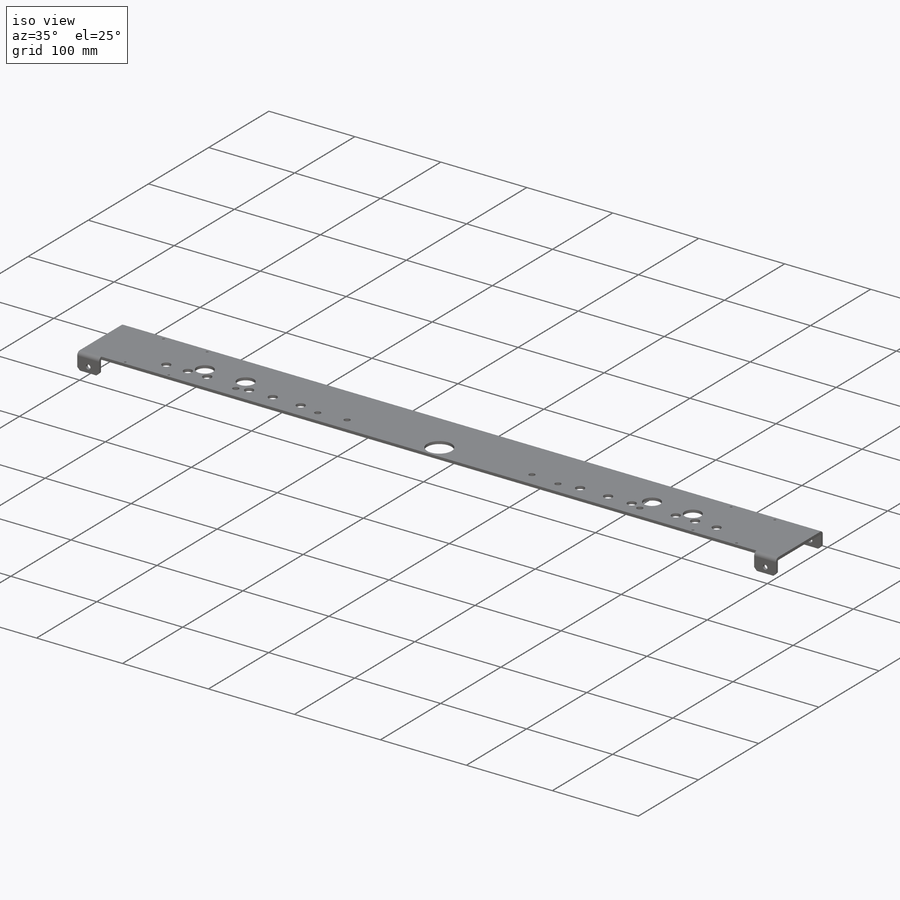
[diagram: iso view]
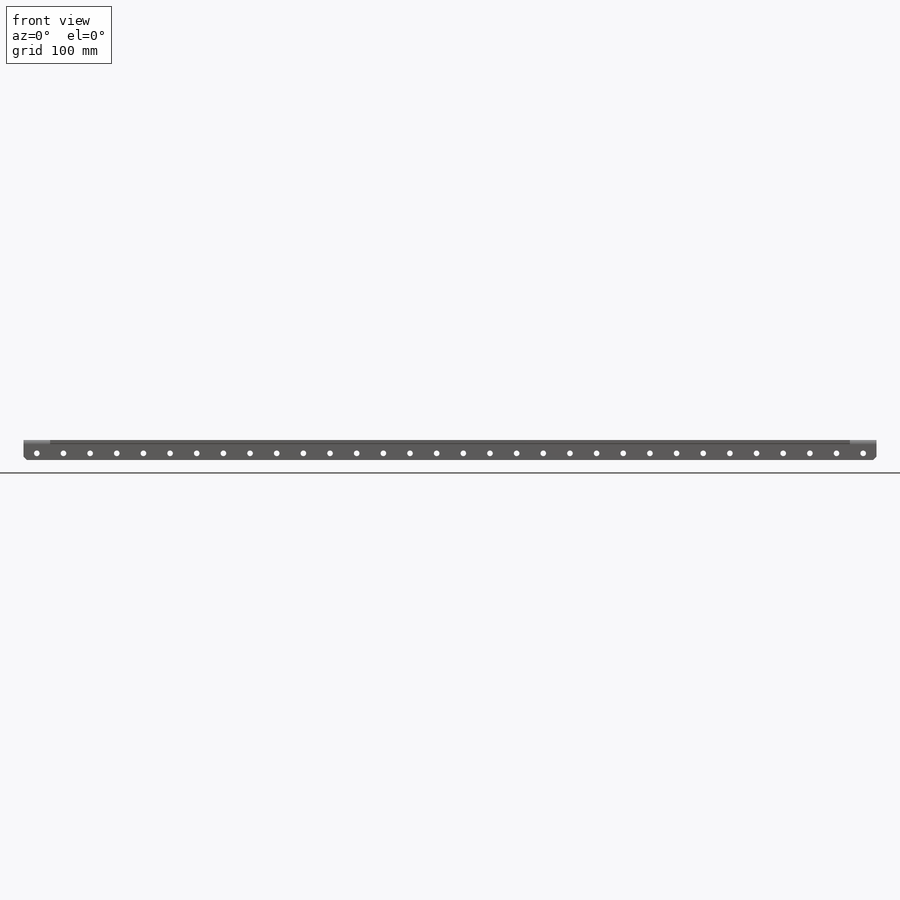
[diagram: front view]
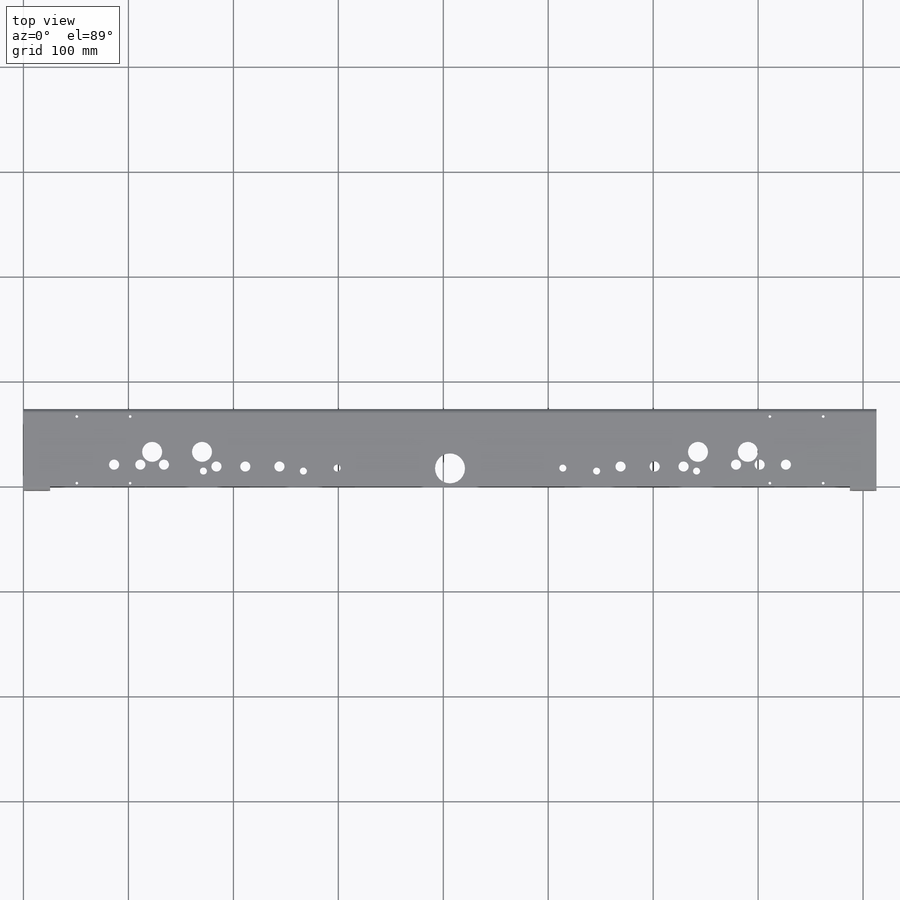
[diagram: top view]
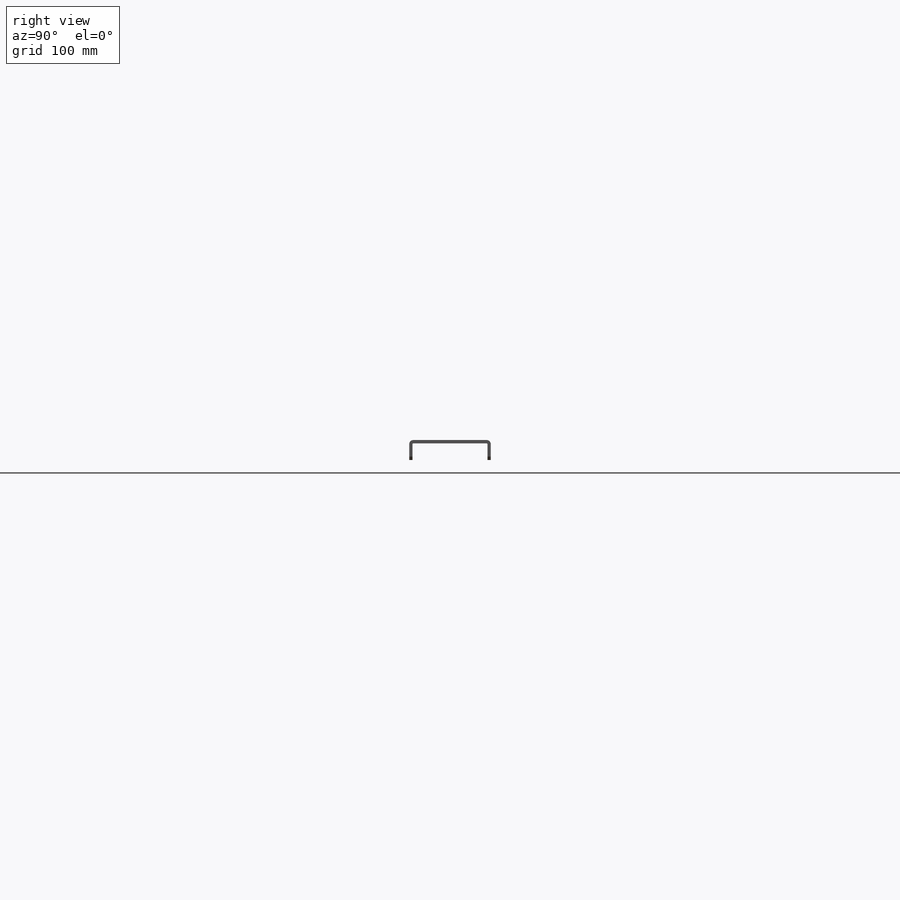
[diagram: right view]
SOLIDWORKS PART (.sldprt)
format: sldprt  version: not decoded by parser v0  size: 748,544 bytes
history: native  units: mm
features: sketch x14, cut_extrude x9, sheet_metal_op x2, delete_body x2, material x1, extrude x1, move_body x1, chamfer x1 + 3 further entries (+17 scaffold rows collapsed; 6 parser-record rows omitted)
feature tree (57):
  scaffold x17  (default folders/planes/origin — collapsed)
  material  "5052-H32"
  sketch  "Sketch1"  dims[D1=69.85mm D2=812.8mm]
  extrude  "Boss-Extrude1"  Depth=3.175mm
  sheet_metal_op  "Sheet-Metal1"
  sketch  "Sketch3"  dims[D1=28.575mm D2=17.272mm]
  cut_extrude  "Cut-Extrude1"  [1 undecoded]
  sketch  "Sketch6"  dims[c1.D1=0.762mm c1.D4=90.0deg c1.D5=1.0 c1.D8=1.5875mm c1.D9=1.5875mm c2.D1=0.762mm c2.D2=500.0mm c2.D3=0.0mm c2.D6=10.0mm c2.D7=19.05mm]
  sheet_metal_op  "Edge-Flange2"
  sketch  "Sketch9"  dims[c1.EdgeBend2=0.0 c1.D1=0.762mm c1.D4=90.0deg c1.D5=2.0 c1.D8=1.5875mm c1.D9=1.5875mm c2.D1=0.762mm c2.D2=500.0mm c2.D3=0.0mm c2.D6=10.0mm c2.D7=19.05mm]
  "am-2952 AM14U2 Inside Sheet Wide"
  "Cut list"
  parser-record x6  (decoder bookkeeping rows leaked as tree rows — omitted from the tree; the rows remain in map.json)
  move_body  "Body-Move/Copy4"
  sketch  "Sketch14"  dims[c1.D1=~9.245188mm c1.D3=5.334mm c2.D1=6.35mm c2.D2=12.7mm c2.D5=25.4mm c2.D4=32.0]
  cut_extrude  "upper flange HP"  [1 undecoded]
  sketch  "Sketch15"
  cut_extrude  "long 6wd"  [1 undecoded]
  sketch  "Sketch16"
  cut_extrude  "wide 6wd"  [1 undecoded]
  sketch  "Sketch17"
  cut_extrude  "Cut-Extrude4"  [1 undecoded]
  sketch  "Sketch18"
  cut_extrude  "Mecanum mounting"  [1 undecoded]
  sketch  "Sketch19"
  cut_extrude  "8wd egg"  [1 undecoded]
  sketch  "Sketch20"
  cut_extrude  "Lower Churro"  [1 undecoded]
  sketch  "Sketch21"  dims[D1=25.4mm D2=25.4mm]
  cut_extrude  "Cut-Extrude7"  [1 undecoded]
  chamfer  "Chamfer1"  Distance=3.175mm
  delete_body  "Body-Delete1"
  "Flat-Pattern1"
  sketch  "Bend-Lines1"
  sketch  "Bounding-Box1"
  delete_body  "Flatten-<EdgeBend2>1"
decode coverage: 8 of 30 modeling features carry decoded parameters; 3 rows unclassified (native names shown)
note: ~ marks probable driven/reference dimensions
note: 9 parameter values undecoded
summary: no parameter record found for 9 features
note: suppression state not decoded; provenance and decode notes live in map.json
